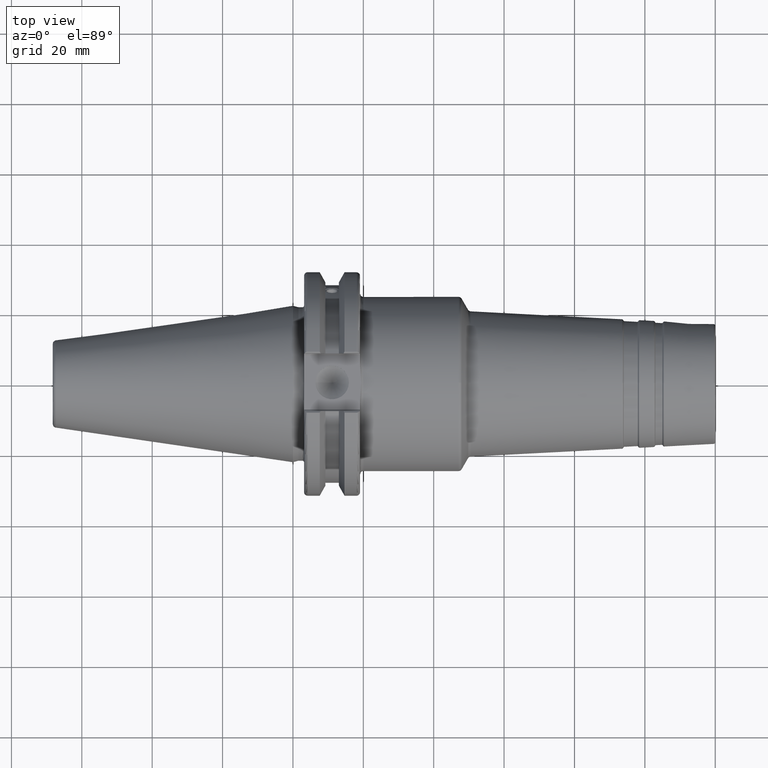
[diagram: clean part render]
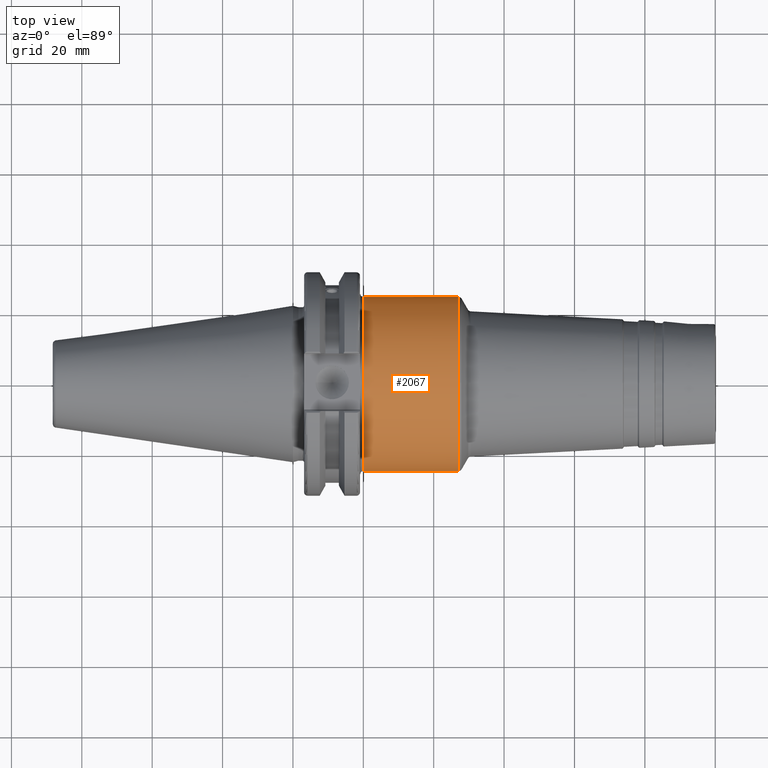
[diagram: same view with one face highlighted and labeled with its STEP entity id]
A machine part, top view. The second image highlights one B-rep face of the part: STEP entity #2067.
In plain terms, the highlighted cylindrical surface (bore or boss wall) has radius 24.75 mm, axis along (1, 0, 0).
Its self-contained STEP definition (entity closure, byte-faithful):
#144=B_SPLINE_CURVE_WITH_KNOTS('',3,(#3281,#3282,#3283,#3284,#3285,#3286,
#3287,#3288,#3289,#3290,#3291,#3292,#3293,#3294,#3295,#3296,#3297,#3298),
 .UNSPECIFIED.,.F.,.F.,(4,2,2,2,2,2,2,2,4),(-2.48845986202559,-2.17733241913027,
-1.86620497623495,-1.55521745362387,-1.24422993101279,-0.933242408401713,
-0.622254885790633,-0.311127442895317,0.),.UNSPECIFIED.);
#178=FACE_OUTER_BOUND('',#286,.T.);
#286=EDGE_LOOP('',(#1377,#1378,#1379,#1380,#1381,#1382,#1383,#1384));
#406=LINE('',#3311,#505);
#505=VECTOR('',#2523,24.75);
#607=CIRCLE('',#2202,24.75);
#608=CIRCLE('',#2203,24.75);
#609=CIRCLE('',#2204,24.75);
#610=CIRCLE('',#2205,24.75);
#611=CIRCLE('',#2206,24.75);
#783=VERTEX_POINT('',#3279);
#784=VERTEX_POINT('',#3280);
#787=VERTEX_POINT('',#3305);
#788=VERTEX_POINT('',#3306);
#789=VERTEX_POINT('',#3308);
#790=VERTEX_POINT('',#3310);
#1027=EDGE_CURVE('',#783,#784,#144,.T.);
#1031=EDGE_CURVE('',#787,#788,#607,.T.);
#1032=EDGE_CURVE('',#789,#787,#608,.T.);
#1033=EDGE_CURVE('',#789,#790,#406,.T.);
#1034=EDGE_CURVE('',#783,#790,#609,.T.);
#1035=EDGE_CURVE('',#790,#784,#610,.T.);
#1036=EDGE_CURVE('',#788,#789,#611,.T.);
#1377=ORIENTED_EDGE('',*,*,#1031,.F.);
#1378=ORIENTED_EDGE('',*,*,#1032,.F.);
#1379=ORIENTED_EDGE('',*,*,#1033,.T.);
#1380=ORIENTED_EDGE('',*,*,#1034,.F.);
#1381=ORIENTED_EDGE('',*,*,#1027,.T.);
#1382=ORIENTED_EDGE('',*,*,#1035,.F.);
#1383=ORIENTED_EDGE('',*,*,#1033,.F.);
#1384=ORIENTED_EDGE('',*,*,#1036,.F.);
#2036=CYLINDRICAL_SURFACE('',#2201,24.75);
#2067=ADVANCED_FACE('',(#178),#2036,.T.);
#2201=AXIS2_PLACEMENT_3D('',#3304,#2517,#2518);
#2202=AXIS2_PLACEMENT_3D('',#3307,#2519,#2520);
#2203=AXIS2_PLACEMENT_3D('',#3309,#2521,#2522);
#2204=AXIS2_PLACEMENT_3D('',#3312,#2524,#2525);
#2205=AXIS2_PLACEMENT_3D('',#3313,#2526,#2527);
#2206=AXIS2_PLACEMENT_3D('',#3314,#2528,#2529);
#2517=DIRECTION('center_axis',(1.,0.,0.));
#2518=DIRECTION('ref_axis',(0.,1.,0.));
#2519=DIRECTION('center_axis',(1.,0.,0.));
#2520=DIRECTION('ref_axis',(0.,-1.,1.83697019872103E-16));
#2521=DIRECTION('center_axis',(1.,0.,0.));
#2522=DIRECTION('ref_axis',(0.,-1.,1.83697019872103E-16));
#2523=DIRECTION('',(-1.,0.,0.));
#2524=DIRECTION('center_axis',(-1.,0.,0.));
#2525=DIRECTION('ref_axis',(0.,6.12323399573677E-17,1.));
#2526=DIRECTION('center_axis',(-1.,0.,0.));
#2527=DIRECTION('ref_axis',(0.,6.12323399573677E-17,1.));
#2528=DIRECTION('center_axis',(1.,0.,0.));
#2529=DIRECTION('ref_axis',(0.,-1.,1.83697019872103E-16));
#3279=CARTESIAN_POINT('',(20.05,-8.19,-23.3556502799644));
#3280=CARTESIAN_POINT('',(20.05,8.18999999999999,-23.3556502799644));
#3281=CARTESIAN_POINT('Ctrl Pts',(20.05,-8.19,-23.3556502799644));
#3282=CARTESIAN_POINT('Ctrl Pts',(21.0870914763177,-8.19,-23.3556502799644));
#3283=CARTESIAN_POINT('Ctrl Pts',(22.1874172494719,-7.98112852617488,-23.4319820145953));
#3284=CARTESIAN_POINT('Ctrl Pts',(24.2026226557734,-7.14301766428651,-23.7009173446597));
#3285=CARTESIAN_POINT('Ctrl Pts',(25.1182638848105,-6.51414519102515,-23.8889373554493));
#3286=CARTESIAN_POINT('Ctrl Pts',(26.563820070037,-5.06858900579863,-24.2368381566145));
#3287=CARTESIAN_POINT('Ctrl Pts',(27.1929429534371,-4.15281808103606,-24.420258379043));
#3288=CARTESIAN_POINT('Ctrl Pts',(28.0312404144778,-2.13713243178097,-24.6784841969774));
#3289=CARTESIAN_POINT('Ctrl Pts',(28.24,-1.03662507537027,-24.75));
#3290=CARTESIAN_POINT('Ctrl Pts',(28.24,1.03662507537027,-24.75));
#3291=CARTESIAN_POINT('Ctrl Pts',(28.0312404144778,2.13713243178097,-24.6784841969774));
#3292=CARTESIAN_POINT('Ctrl Pts',(27.1929429534371,4.15281808103606,-24.420258379043));
#3293=CARTESIAN_POINT('Ctrl Pts',(26.563820070037,5.06858900579863,-24.2368381566145));
#3294=CARTESIAN_POINT('Ctrl Pts',(25.1182638848105,6.51414519102515,-23.8889373554493));
#3295=CARTESIAN_POINT('Ctrl Pts',(24.2026226557734,7.14301766428652,-23.7009173446597));
#3296=CARTESIAN_POINT('Ctrl Pts',(22.1874172494719,7.98112852617488,-23.4319820145953));
#3297=CARTESIAN_POINT('Ctrl Pts',(21.0870914763177,8.19,-23.3556502799644));
#3298=CARTESIAN_POINT('Ctrl Pts',(20.05,8.19,-23.3556502799644));
#3304=CARTESIAN_POINT('Origin',(33.3467852985745,0.,0.));
#3305=CARTESIAN_POINT('',(47.0662203279594,24.75,-1.51550041394485E-15));
#3306=CARTESIAN_POINT('',(47.0662203279594,-3.0310008278897E-15,24.75));
#3307=CARTESIAN_POINT('Origin',(47.0662203279594,0.,0.));
#3308=CARTESIAN_POINT('',(47.0662203279594,-24.75,-3.0310008278897E-15));
#3309=CARTESIAN_POINT('Origin',(47.0662203279594,0.,0.));
#3310=CARTESIAN_POINT('',(20.05,-24.75,-3.0310008278897E-15));
#3311=CARTESIAN_POINT('',(33.3467852985745,-24.75,-3.0310008278897E-15));
#3312=CARTESIAN_POINT('Origin',(20.05,0.,0.));
#3313=CARTESIAN_POINT('Origin',(20.05,0.,0.));
#3314=CARTESIAN_POINT('Origin',(47.0662203279594,0.,0.));